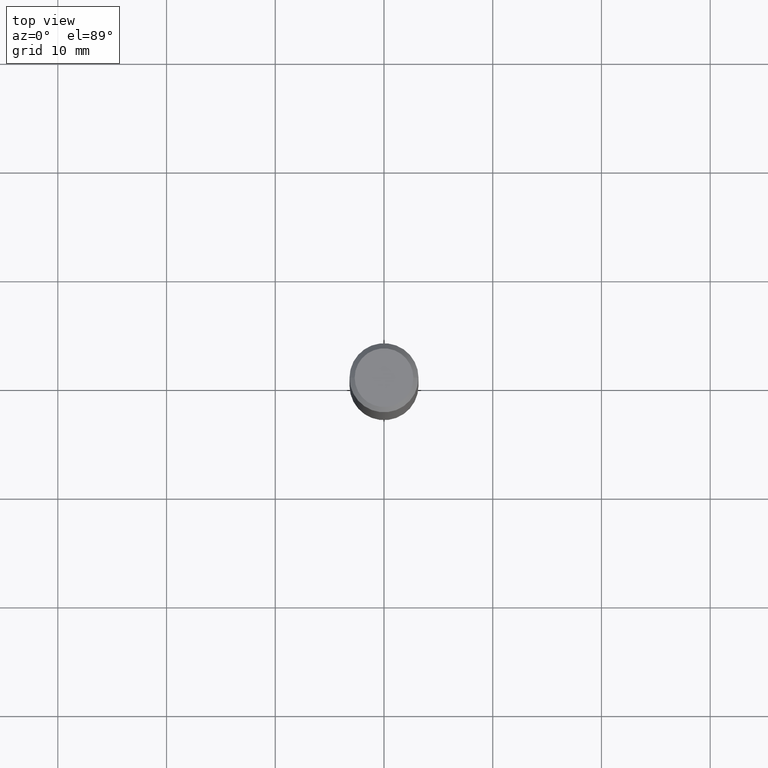
[diagram: clean part render]
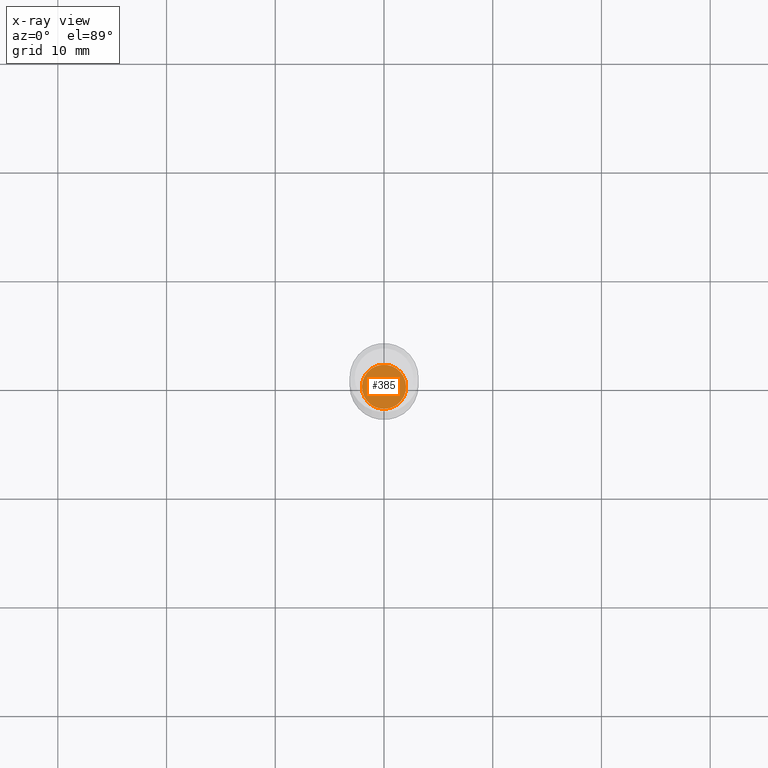
[diagram: x-ray — body ghosted, one internal face saturated and labeled with its STEP entity id]
A machine part, top view, then the same camera in x-ray: the body is ghosted and one INTERNAL B-rep face — a face not visible from any outside direction — is saturated and labeled: STEP entity #385.
In plain terms, the highlighted planar face has unit normal (-0, 0, 1).
Its self-contained STEP definition (entity closure, byte-faithful):
#17 = CARTESIAN_POINT ( 'NONE',  ( 4.673290888619796010E-29, -6.672220838529250908E-15, -1.910999999999999810 ) ) ;
#18 = EDGE_CURVE ( 'NONE', #340, #206, #194, .T. ) ;
#47 = CARTESIAN_POINT ( 'NONE',  ( 0.08000000000000000167, -7.230857852744151772E-15, -1.910999999999999810 ) ) ;
#53 = CARTESIAN_POINT ( 'NONE',  ( 4.673290888619796010E-29, -6.672220838529250908E-15, -1.910999999999999810 ) ) ;
#60 = DIRECTION ( 'NONE',  ( 1.000000000000000000, -6.982962677686259611E-15, 0.000000000000000000 ) ) ;
#135 = AXIS2_PLACEMENT_3D ( 'NONE', #17, #164, #60 ) ;
#144 = CIRCLE ( 'NONE', #135, 0.08000000000000000167 ) ;
#148 = DIRECTION ( 'NONE',  ( -2.445468806185136597E-29, 3.491481338843145583E-15, 1.000000000000000000 ) ) ;
#150 = ORIENTED_EDGE ( 'NONE', *, *, #18, .F. ) ;
#164 = DIRECTION ( 'NONE',  ( -2.445468806185136597E-29, 3.491481338843145583E-15, 1.000000000000000000 ) ) ;
#194 = CIRCLE ( 'NONE', #371, 0.08000000000000000167 ) ;
#204 = DIRECTION ( 'NONE',  ( 1.000000000000000000, -6.982962677686265922E-15, 4.876176775795935793E-29 ) ) ;
#206 = VERTEX_POINT ( 'NONE', #47 ) ;
#229 = DIRECTION ( 'NONE',  ( 1.000000000000000000, -6.982962677686259611E-15, 0.000000000000000000 ) ) ;
#240 = FACE_OUTER_BOUND ( 'NONE', #477, .T. ) ;
#251 = DIRECTION ( 'NONE',  ( -2.438088387897960049E-29, 3.491481338843145188E-15, 1.000000000000000000 ) ) ;
#330 = AXIS2_PLACEMENT_3D ( 'NONE', #53, #251, #204 ) ;
#340 = VERTEX_POINT ( 'NONE', #439 ) ;
#371 = AXIS2_PLACEMENT_3D ( 'NONE', #485, #148, #229 ) ;
#375 = EDGE_CURVE ( 'NONE', #206, #340, #144, .T. ) ;
#385 = ADVANCED_FACE ( 'NONE', ( #240 ), #391, .F. ) ;
#391 = PLANE ( 'NONE',  #330 ) ;
#399 = ORIENTED_EDGE ( 'NONE', *, *, #375, .F. ) ;
#439 = CARTESIAN_POINT ( 'NONE',  ( -0.08000000000000000167, -6.101137422747059842E-15, -1.910999999999999810 ) ) ;
#477 = EDGE_LOOP ( 'NONE', ( #399, #150 ) ) ;
#485 = CARTESIAN_POINT ( 'NONE',  ( 4.673290888619796010E-29, -6.672220838529250908E-15, -1.910999999999999810 ) ) ;